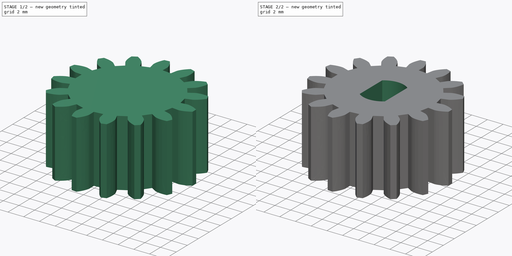
[diagram: build sequence overview — one tinted view per stage of 2, left to right]
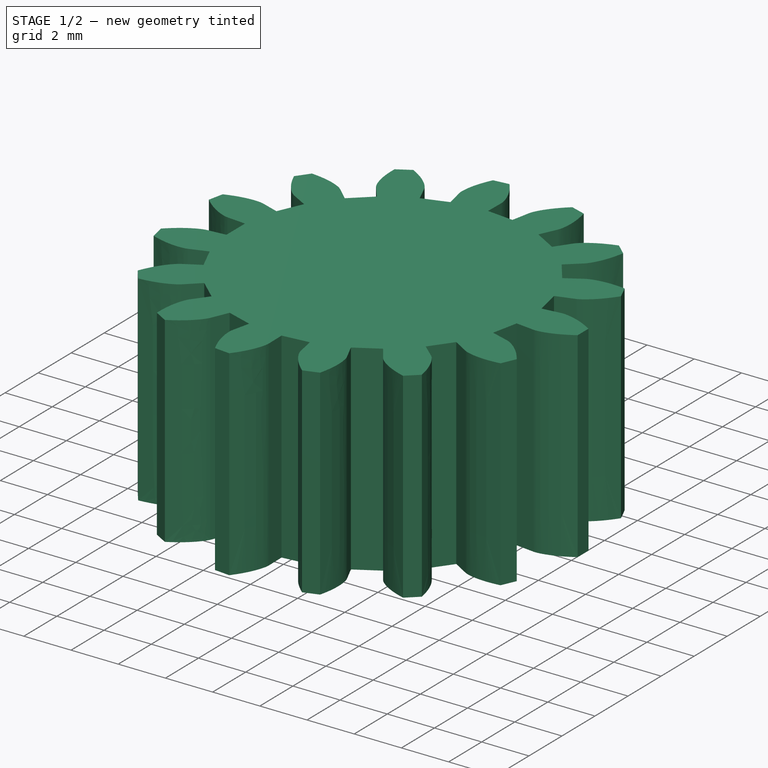
[diagram: stage 1 of 2 — iso view after this stage's code; geometry added in this stage tinted green]
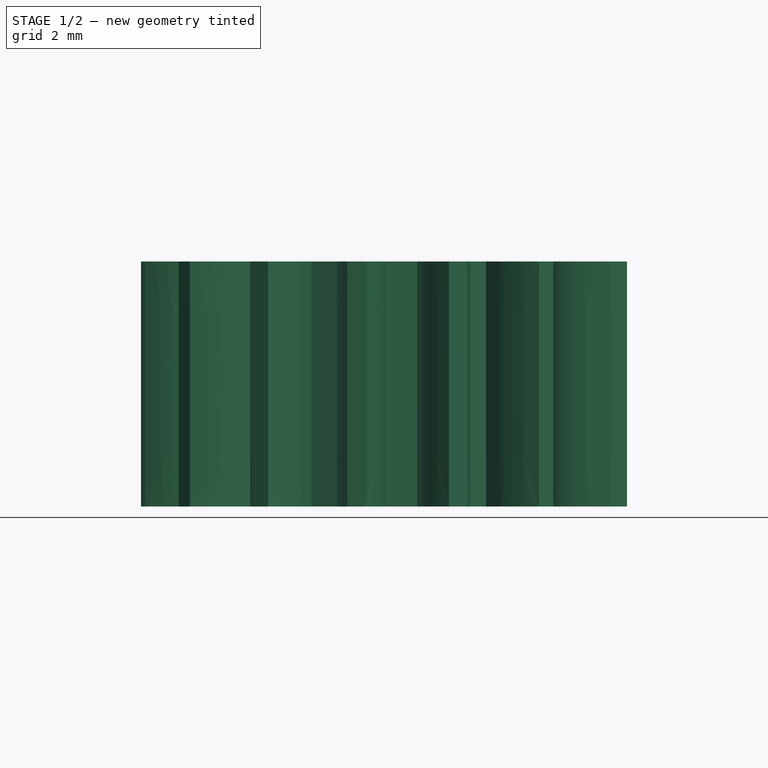
[diagram: stage 1 of 2 — front view after this stage's code; geometry added in this stage tinted green]
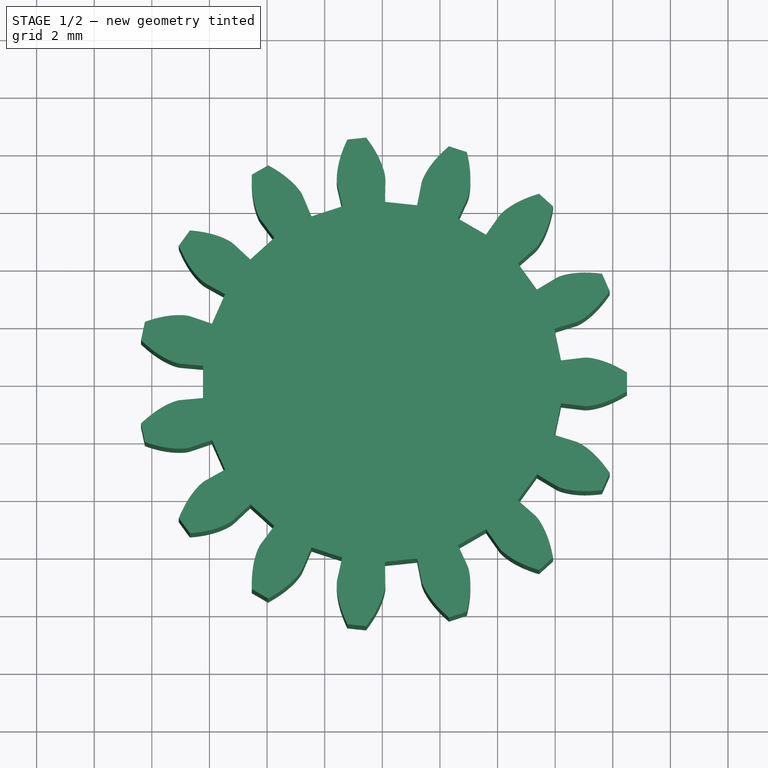
[diagram: stage 1 of 2 — top view after this stage's code; geometry added in this stage tinted green]
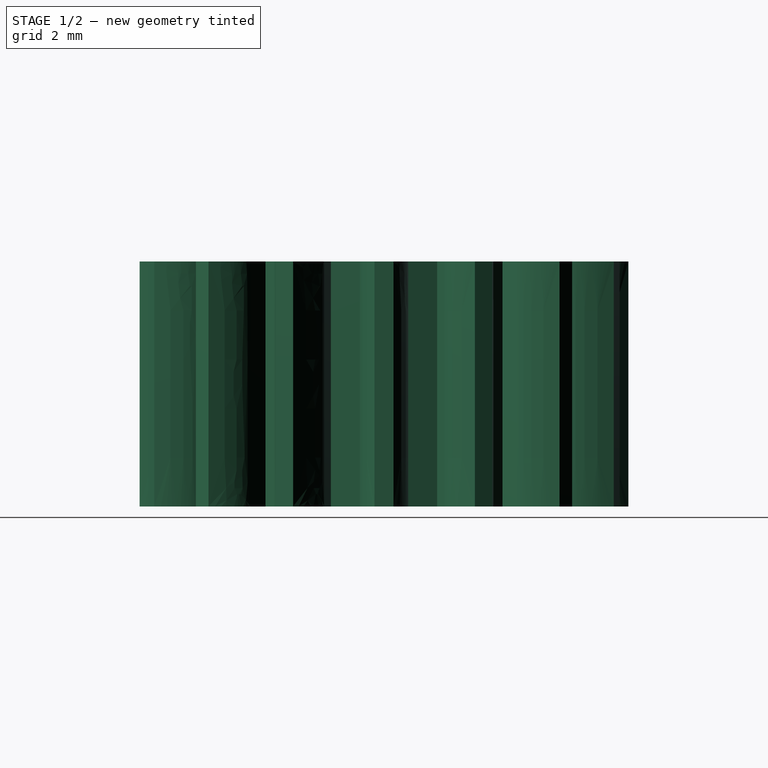
[diagram: stage 1 of 2 — right view after this stage's code; geometry added in this stage tinted green]
FCSTD DOCUMENT  (FreeCAD 0.19R24291 (Git))
Label: Gear01
License: All rights reserved
LicenseURL: http://en.wikipedia.org/wiki/All_rights_reserved
objects: Sketcher::SketchObject×2, PartDesign::Pocket×2, PartDesign::CoordinateSystem×1, PartDesign::FeaturePython×1, PartDesign::Body×1, App::Part×1
note: 9 computed .brp shape members not serialized (recipe doc carries the construction recipe); baked Part::Feature solids carry a one-line shape summary decoded from their .brp
EXTERNAL_REF file=data.FCStd obj=Spreadsheet

FEATURE [PartDesign::CoordinateSystem] LCS_0
  AttacherType = Attacher::AttachEngine3D
  AttachmentOffset = pos=(0,0,2.5) rot=(0,0,1;0rad)
  MapMode = 2
  Placement = pos=(0,0,2.5) rot=(0,0,1;0rad)
  Support = -> [X_Axis]
FEATURE [PartDesign::FeaturePython] involutegear  # WARN: FeaturePython — macro-defined, semantics opaque (R4)
  AttacherType = Attacher::AttachEngine3D
  backlash = 0
  beta = 0
  clearance = 0.25
  da = 17
  df = 12.5
  double_helix = false
  dw = 15
  head = 0
  height = 8.5
  module = 1
  numpoints = 6
  pressure_angle = 20
  properties_from_tool = false
  reversed_backlash = false
  shift = 0
  simple = false
  teeth = 15
  transverse_pitch = 3.14159
  undercut = false
  version = 0.0.3
  expr: teeth = data#<<data>>.Gear01Teeth
  expr: module = data#<<data>>.GearModule
  expr: height = data#<<data>>.Gear01Thickness
FEATURE [Sketcher::SketchObject] Sketch
  FullyConstrained = true
  MapMode = 5
  Support = -> [XY_Plane001]
  expr: Constraints[0] = data#<<data>>.StepperShaftDiameter
  sketch-geometry (1):
    g0: Circle CenterX=0 CenterY=0 CenterZ=0 NormalX=0 NormalY=0 NormalZ=1 AngleXU=0 Radius=2.6
  constraints (2):
    c: Diameter(g0) = 5.2
    c: Coincident(g0,g-1)
FEATURE [PartDesign::Pocket] Pocket
  BaseFeature = -> involutegear
  Length = 2.5
  Length2 = 100
  Profile = -> Sketch
  Reversed = true
  Type = 0
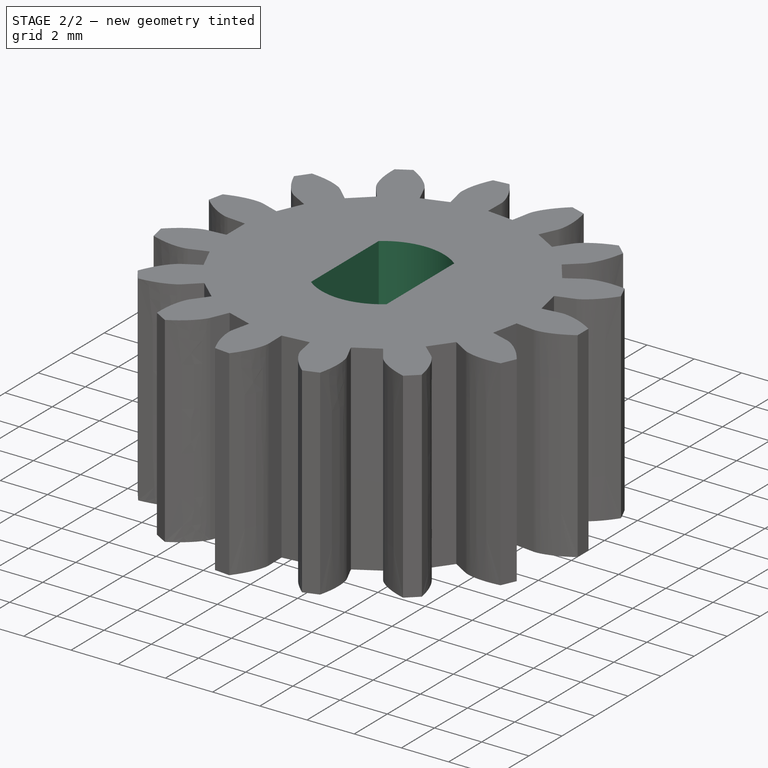
[diagram: stage 2 of 2 — iso view after this stage's code; geometry added in this stage tinted green]
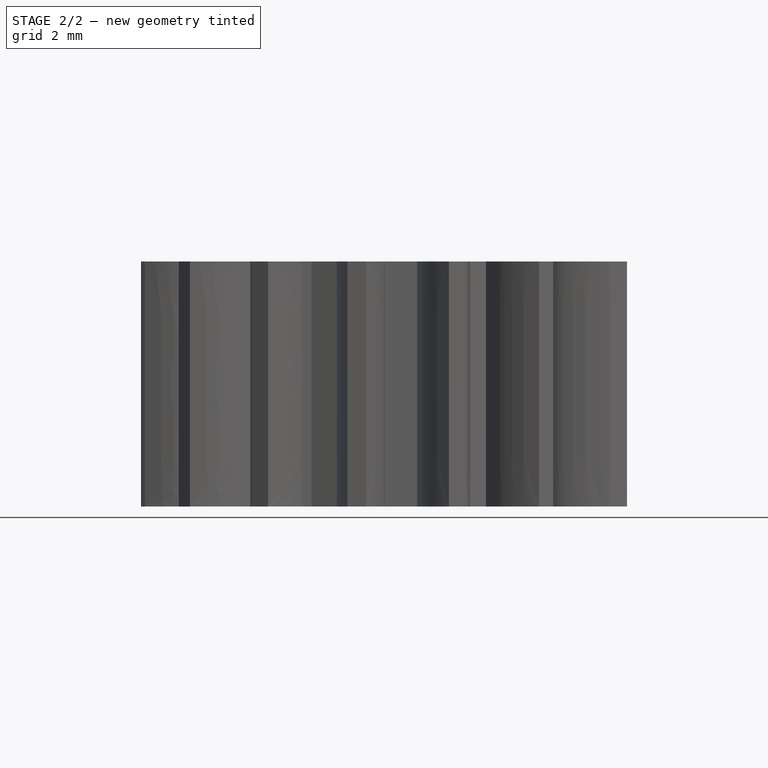
[diagram: stage 2 of 2 — front view after this stage's code; geometry added in this stage tinted green]
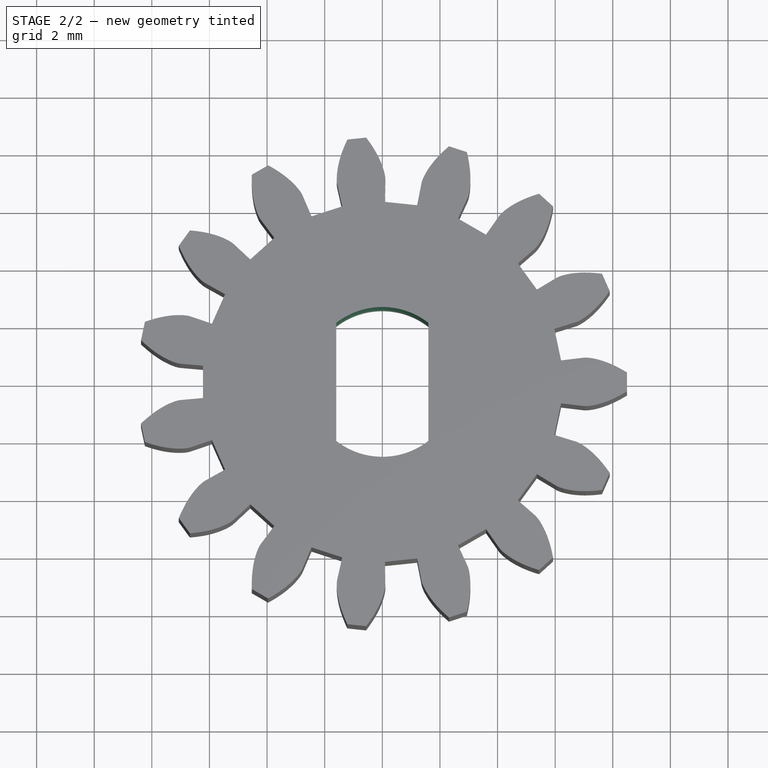
[diagram: stage 2 of 2 — top view after this stage's code; geometry added in this stage tinted green]
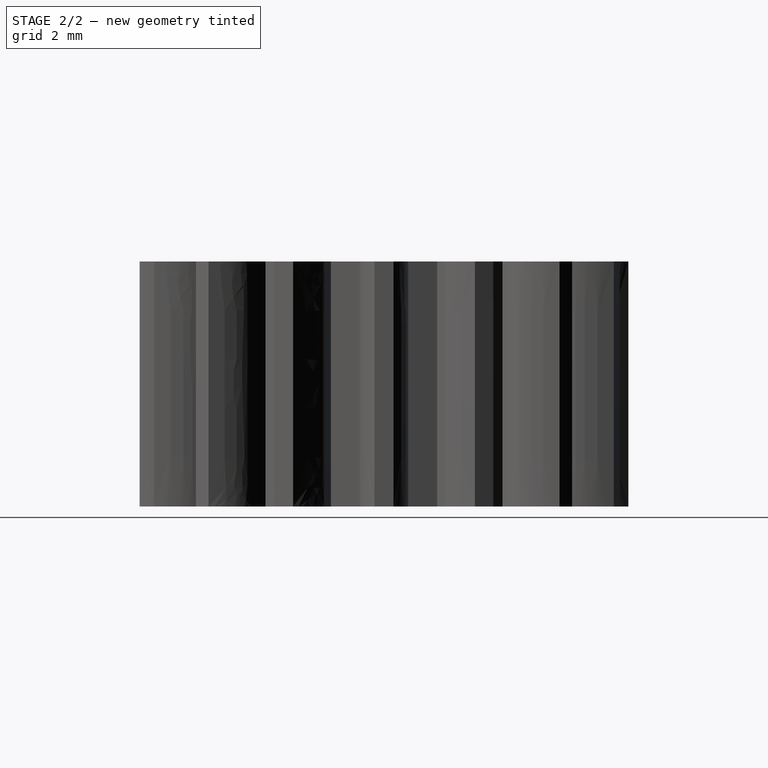
[diagram: stage 2 of 2 — right view after this stage's code; geometry added in this stage tinted green]
FEATURE [Sketcher::SketchObject] Sketch001
  FullyConstrained = true
  MapMode = 5
  Support = -> [XY_Plane001]
  expr: Constraints[11] = data#<<data>>.StepperShaftRectWidth
  expr: Constraints[10] = data#<<data>>.StepperShaftDiameter
  sketch-geometry (4):
    g0: ArcOfCircle CenterX=0 CenterY=0 CenterZ=0 NormalX=0 NormalY=0 NormalZ=1 AngleXU=0 Radius=2.6 StartAngle=0.907923 EndAngle=2.23367
    g1: LineSegment StartX=-1.6 StartY=2.04939 StartZ=0 EndX=-1.6 EndY=-2.04939 EndZ=0
    g2: LineSegment StartX=1.6 StartY=2.04939 StartZ=0 EndX=1.6 EndY=-2.04939 EndZ=0
    g3: ArcOfCircle CenterX=0 CenterY=0 CenterZ=0 NormalX=0 NormalY=0 NormalZ=1 AngleXU=0 Radius=2.6 StartAngle=4.04952 EndAngle=5.37526
  constraints (12):
    c: Coincident(g0,g-1)
    c: Vertical(g1)
    c: Vertical(g2)
    c: Symmetric(g1,g2,g-2)
    c: Coincident(g0,g2)
    c: Coincident(g3,g2)
    c: Equal(g0,g3)
    c: PointOnObject(g0,g1)
    c: Coincident(g3,g1)
    c: Coincident(g0,g3)
    c: Diameter(g0) = 5.2
    c: DistanceX(g0,g0) = 3.2
FEATURE [PartDesign::Pocket] Pocket001
  BaseFeature = -> Pocket
  Length = 5
  Length2 = 100
  Profile = -> Sketch001
  Reversed = true
  Type = 1
FEATURE [PartDesign::Body] Body  label="Body_gear01"
  Group = -> [involutegear,Sketch,Pocket,Sketch001,Pocket001]
  Origin = -> Origin001
  Tip = -> Pocket001
FEATURE [App::Part] Part_gear01
  Group = -> [LCS_0,Body]
  Origin = -> Origin
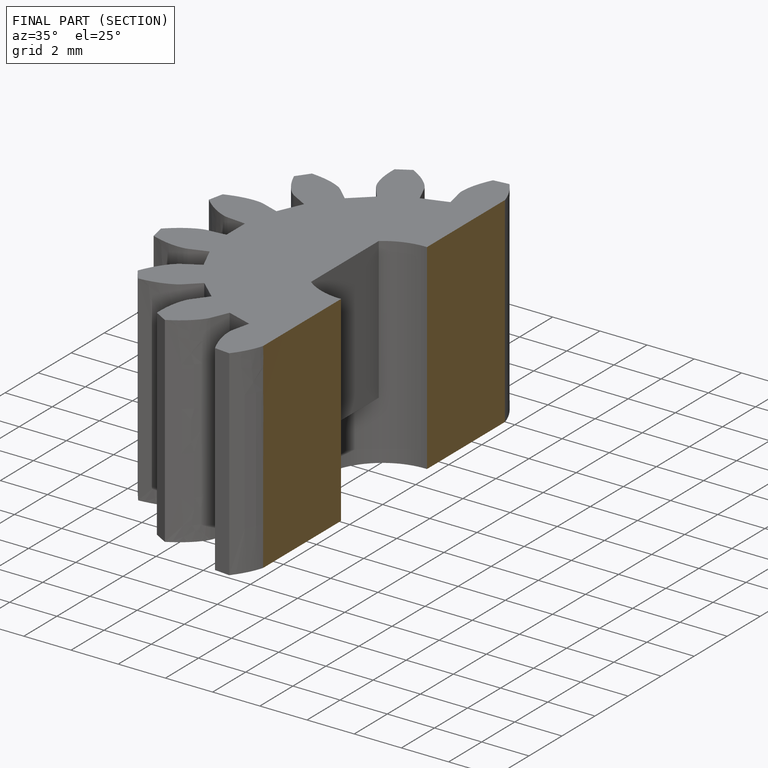
[diagram: finished part — half-section view (interior)]
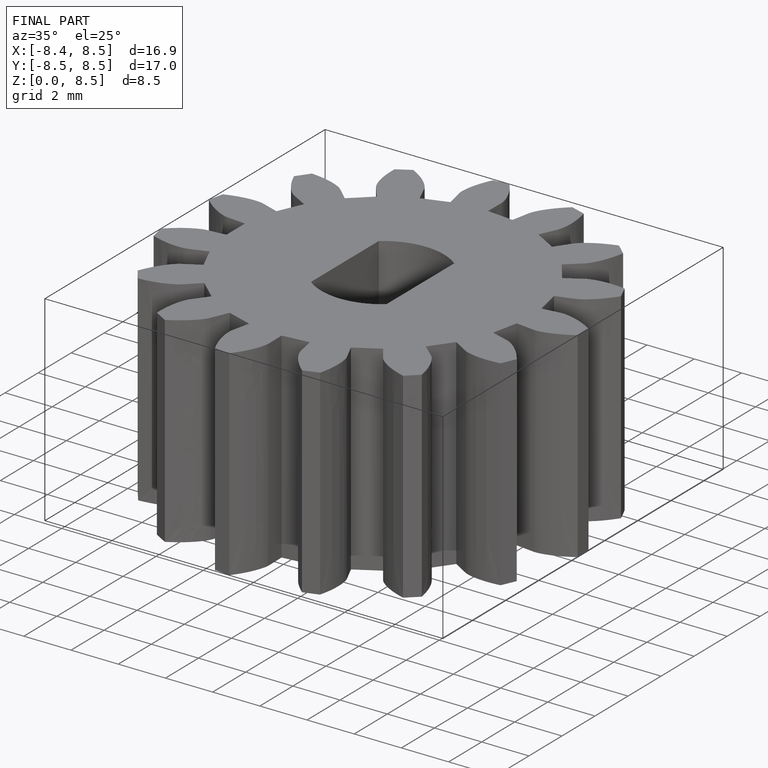
[diagram: finished part — iso view with bounding-box wireframe]
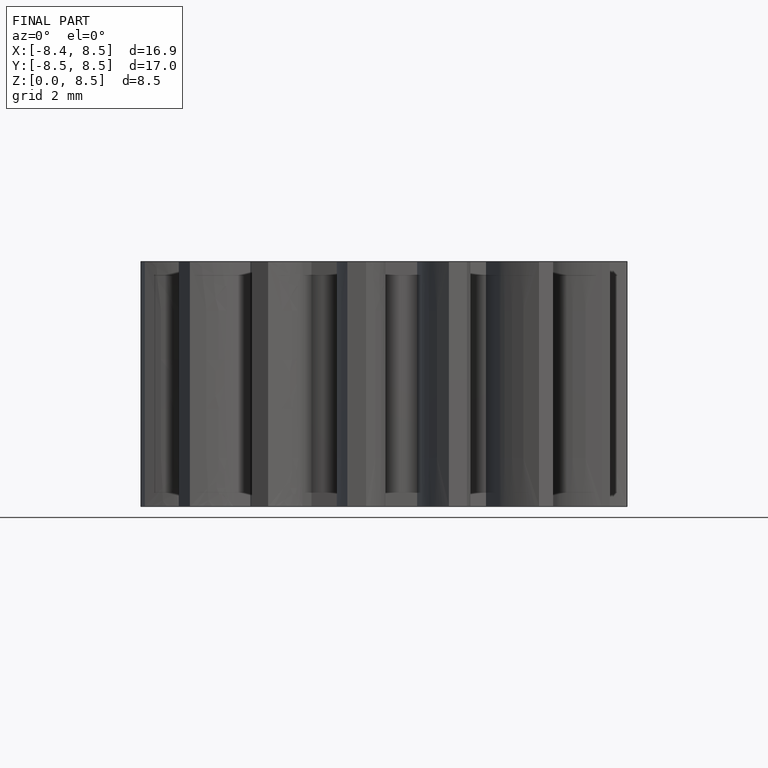
[diagram: finished part — front view with bounding-box wireframe]
